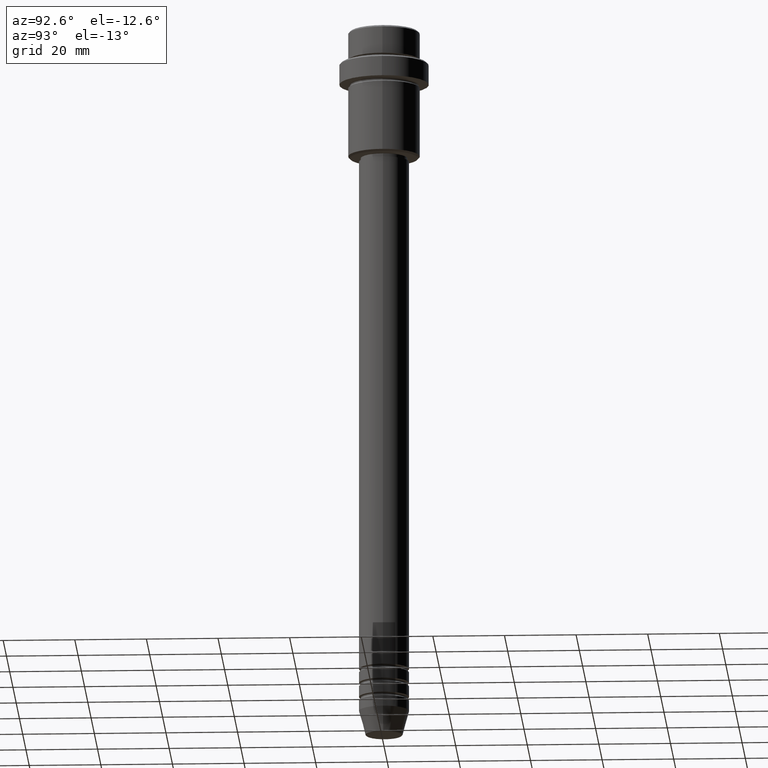
[diagram: clean part render]
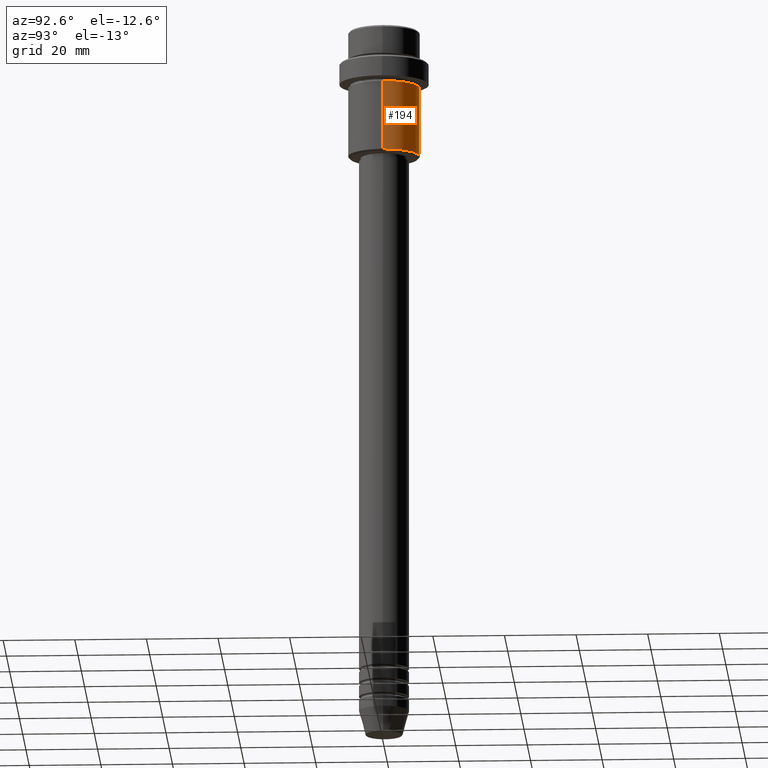
[diagram: same view with one face highlighted and labeled with its STEP entity id]
A machine part, auxiliary view. The second image highlights one B-rep face of the part: STEP entity #194.
In plain terms, the highlighted cylindrical surface (edge-blend (fillet) strip) has radius 10 mm, axis along (-0, -0, 1).
Its self-contained STEP definition (entity closure, byte-faithful):
#24 = LINE ( 'NONE', #124, #1256 ) ;
#37 = DIRECTION ( 'NONE',  ( -1.000000000000000000, 0.000000000000000000, 0.000000000000000000 ) ) ;
#53 = AXIS2_PLACEMENT_3D ( 'NONE', #1036, #1345, #695 ) ;
#69 = CARTESIAN_POINT ( 'NONE',  ( -9.999999999999998224, 1.224646799147353059E-15, -35.49999999999995026 ) ) ;
#121 = CARTESIAN_POINT ( 'NONE',  ( 0.000000000000000000, 0.000000000000000000, -35.49999999999995026 ) ) ;
#124 = CARTESIAN_POINT ( 'NONE',  ( -9.999999999999998224, 1.224646799147353059E-15, 0.000000000000000000 ) ) ;
#194 = ADVANCED_FACE ( 'NONE', ( #277 ), #479, .T. ) ;
#219 = DIRECTION ( 'NONE',  ( -0.000000000000000000, -0.000000000000000000, 1.000000000000000000 ) ) ;
#277 = FACE_OUTER_BOUND ( 'NONE', #1049, .T. ) ;
#314 = VERTEX_POINT ( 'NONE', #69 ) ;
#323 = CARTESIAN_POINT ( 'NONE',  ( -9.999999999999998224, 1.224646799147353059E-15, -16.00000000000000000 ) ) ;
#342 = LINE ( 'NONE', #674, #359 ) ;
#347 = ORIENTED_EDGE ( 'NONE', *, *, #1260, .F. ) ;
#359 = VECTOR ( 'NONE', #546, 1000.000000000000000 ) ;
#454 = ORIENTED_EDGE ( 'NONE', *, *, #753, .F. ) ;
#479 = CYLINDRICAL_SURFACE ( 'NONE', #53, 9.999999999999998224 ) ;
#481 = CIRCLE ( 'NONE', #982, 9.999999999999998224 ) ;
#546 = DIRECTION ( 'NONE',  ( -0.000000000000000000, -0.000000000000000000, 1.000000000000000000 ) ) ;
#575 = DIRECTION ( 'NONE',  ( -0.000000000000000000, -0.000000000000000000, 1.000000000000000000 ) ) ;
#583 = CARTESIAN_POINT ( 'NONE',  ( 0.000000000000000000, 0.000000000000000000, -16.00000000000000000 ) ) ;
#589 = ORIENTED_EDGE ( 'NONE', *, *, #719, .T. ) ;
#674 = CARTESIAN_POINT ( 'NONE',  ( 9.999999999999998224, 0.000000000000000000, 0.000000000000000000 ) ) ;
#695 = DIRECTION ( 'NONE',  ( 1.000000000000000000, 0.000000000000000000, 0.000000000000000000 ) ) ;
#698 = VERTEX_POINT ( 'NONE', #323 ) ;
#719 = EDGE_CURVE ( 'NONE', #314, #698, #24, .T. ) ;
#753 = EDGE_CURVE ( 'NONE', #810, #1060, #342, .T. ) ;
#790 = EDGE_CURVE ( 'NONE', #810, #314, #981, .T. ) ;
#810 = VERTEX_POINT ( 'NONE', #1130 ) ;
#953 = CARTESIAN_POINT ( 'NONE',  ( 9.999999999999998224, 0.000000000000000000, -16.00000000000000000 ) ) ;
#981 = CIRCLE ( 'NONE', #1073, 9.999999999999998224 ) ;
#982 = AXIS2_PLACEMENT_3D ( 'NONE', #583, #575, #1112 ) ;
#1036 = CARTESIAN_POINT ( 'NONE',  ( 0.000000000000000000, 0.000000000000000000, 0.000000000000000000 ) ) ;
#1049 = EDGE_LOOP ( 'NONE', ( #1308, #589, #347, #454 ) ) ;
#1060 = VERTEX_POINT ( 'NONE', #953 ) ;
#1073 = AXIS2_PLACEMENT_3D ( 'NONE', #121, #1311, #37 ) ;
#1112 = DIRECTION ( 'NONE',  ( 1.000000000000000000, 0.000000000000000000, 0.000000000000000000 ) ) ;
#1130 = CARTESIAN_POINT ( 'NONE',  ( 9.999999999999998224, 0.000000000000000000, -35.49999999999995026 ) ) ;
#1256 = VECTOR ( 'NONE', #219, 1000.000000000000000 ) ;
#1260 = EDGE_CURVE ( 'NONE', #1060, #698, #481, .T. ) ;
#1308 = ORIENTED_EDGE ( 'NONE', *, *, #790, .T. ) ;
#1311 = DIRECTION ( 'NONE',  ( -0.000000000000000000, -0.000000000000000000, 1.000000000000000000 ) ) ;
#1345 = DIRECTION ( 'NONE',  ( -0.000000000000000000, -0.000000000000000000, 1.000000000000000000 ) ) ;